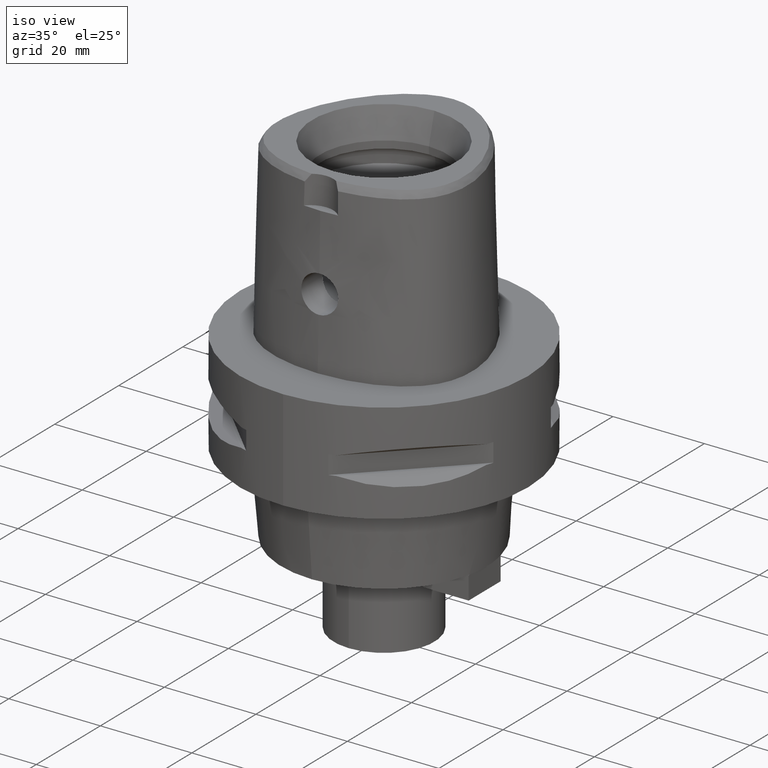
[diagram: clean part render]
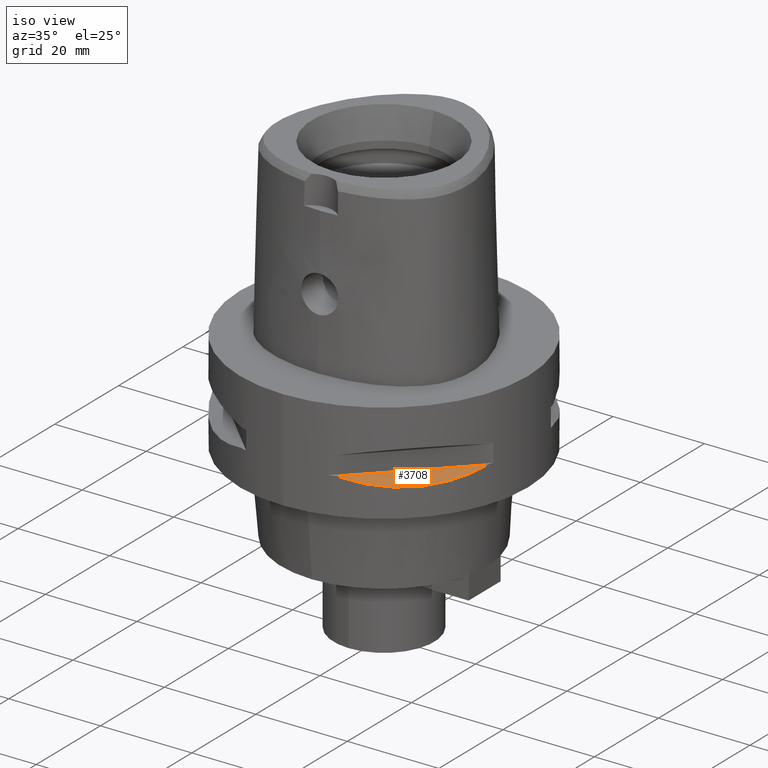
[diagram: same view with one face highlighted and labeled with its STEP entity id]
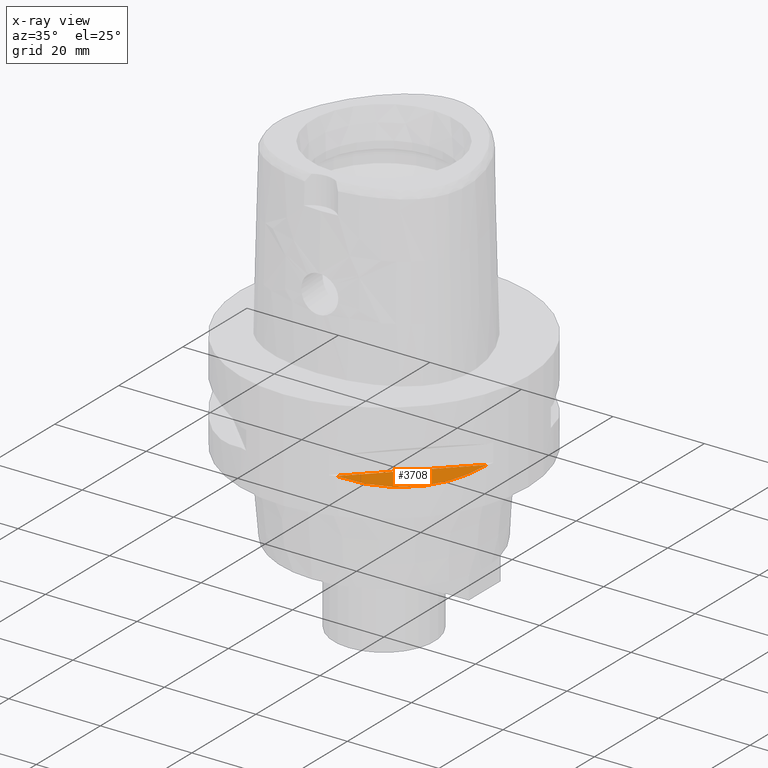
[diagram: x-ray of the same camera — body ghosted, the highlighted face saturated]
A machine part, iso view. The second image highlights one B-rep face of the part: STEP entity #3708.
The next image is the same camera in x-ray: the body ghosted, the highlighted face saturated — about 0% of this face is hidden behind the body in this view.
In plain terms, the highlighted planar face has unit normal (-0.3536, 0.3536, -0.866).
Its self-contained STEP definition (entity closure, byte-faithful):
#478=CARTESIAN_POINT('',(1.044775724750E1,-2.971690375018E1,-1.405E1));
#479=CARTESIAN_POINT('',(1.282388988809E1,-2.888151197365E1,-1.467900482380E1));
#480=CARTESIAN_POINT('',(1.711282138769E1,-2.674739463903E1,-1.555870402292E1));
#481=CARTESIAN_POINT('',(2.244574140438E1,-2.244574140438E1,-1.597971692370E1));
#482=CARTESIAN_POINT('',(2.674739463903E1,-1.711282138769E1,-1.555870402292E1));
#483=CARTESIAN_POINT('',(2.888151197365E1,-1.282388988809E1,-1.467900482380E1));
#484=CARTESIAN_POINT('',(2.971690375018E1,-1.044775724750E1,-1.405E1));
#1542=DIRECTION('',(7.071067811865E-1,7.071067811865E-1,0.E0));
#1543=VECTOR('',#1542,2.725068831944E1);
#1544=CARTESIAN_POINT('',(1.044775724750E1,-2.971690375018E1,-1.405E1));
#1545=LINE('',#1544,#1543);
#1828=CARTESIAN_POINT('',(1.044775724750E1,-2.971690375018E1,-1.405E1));
#1829=VERTEX_POINT('',#1828);
#1830=VERTEX_POINT('',#484);
#3699=CARTESIAN_POINT('',(3.422446612257E1,-5.940194875108E0,-1.405E1));
#3700=DIRECTION('',(-3.535533905933E-1,3.535533905933E-1,-8.660254037844E-1));
#3701=DIRECTION('',(6.123724356958E-1,-6.123724356958E-1,-5.E-1));
#3702=AXIS2_PLACEMENT_3D('',#3699,#3700,#3701);
#3703=PLANE('',#3702);
#3704=ORIENTED_EDGE('',*,*,#2738,.F.);
#3705=ORIENTED_EDGE('',*,*,#3692,.T.);
#3706=EDGE_LOOP('',(#3704,#3705));
#3707=FACE_OUTER_BOUND('',#3706,.F.);
#485=B_SPLINE_CURVE_WITH_KNOTS('',3,(#478,#479,#480,#481,#482,#483,#484),
.UNSPECIFIED.,.F.,.F.,(4,1,1,1,4),(0.E0,2.5E-1,5.E-1,7.5E-1,1.E0),
.UNSPECIFIED.);
#2738=EDGE_CURVE('',#1829,#1830,#485,.T.);
#3692=EDGE_CURVE('',#1829,#1830,#1545,.T.);
#3708=ADVANCED_FACE('',(#3707),#3703,.F.);